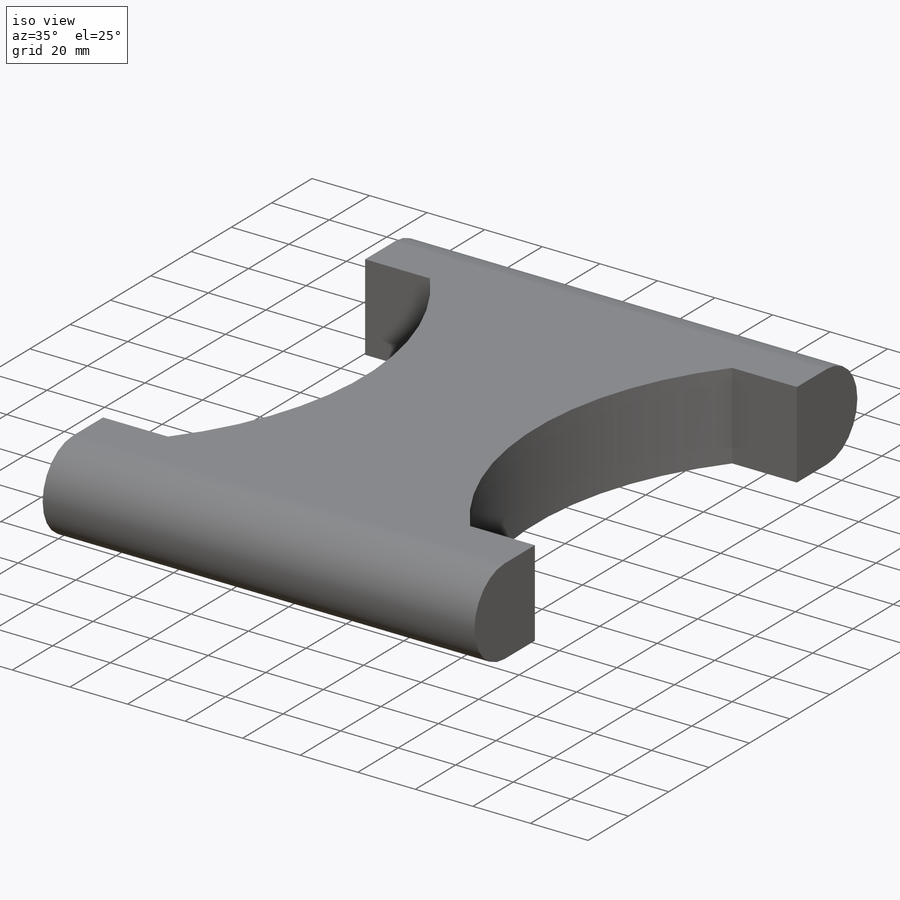
[diagram: iso view]
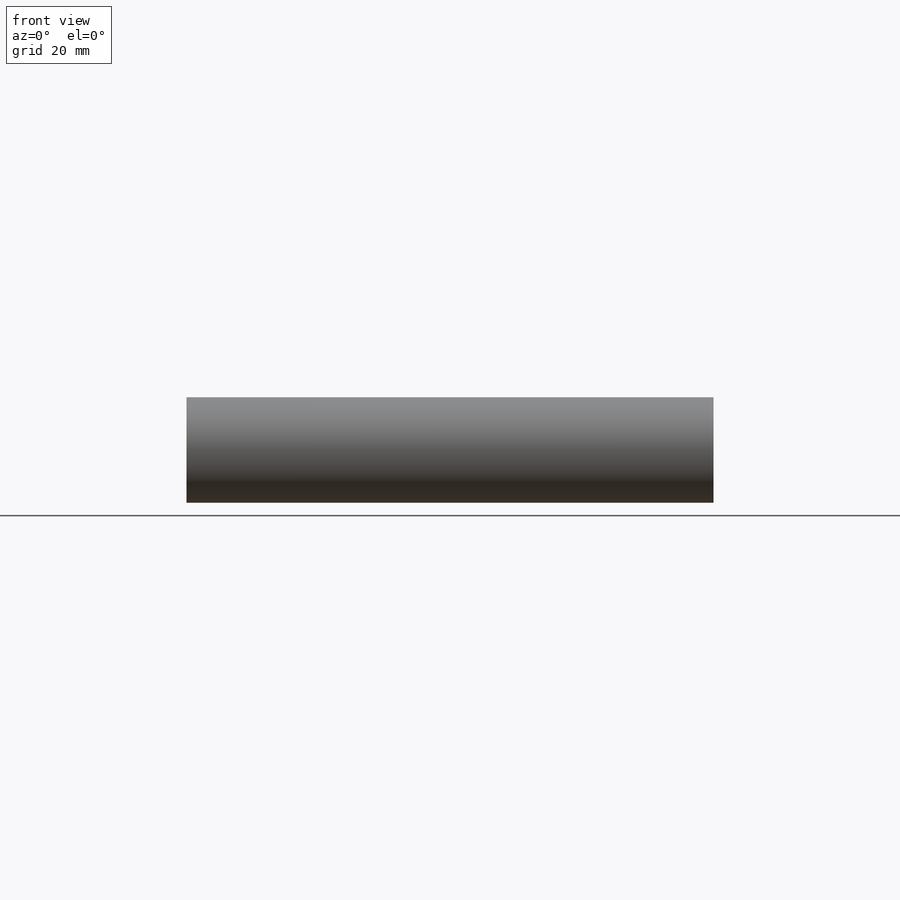
[diagram: front view]
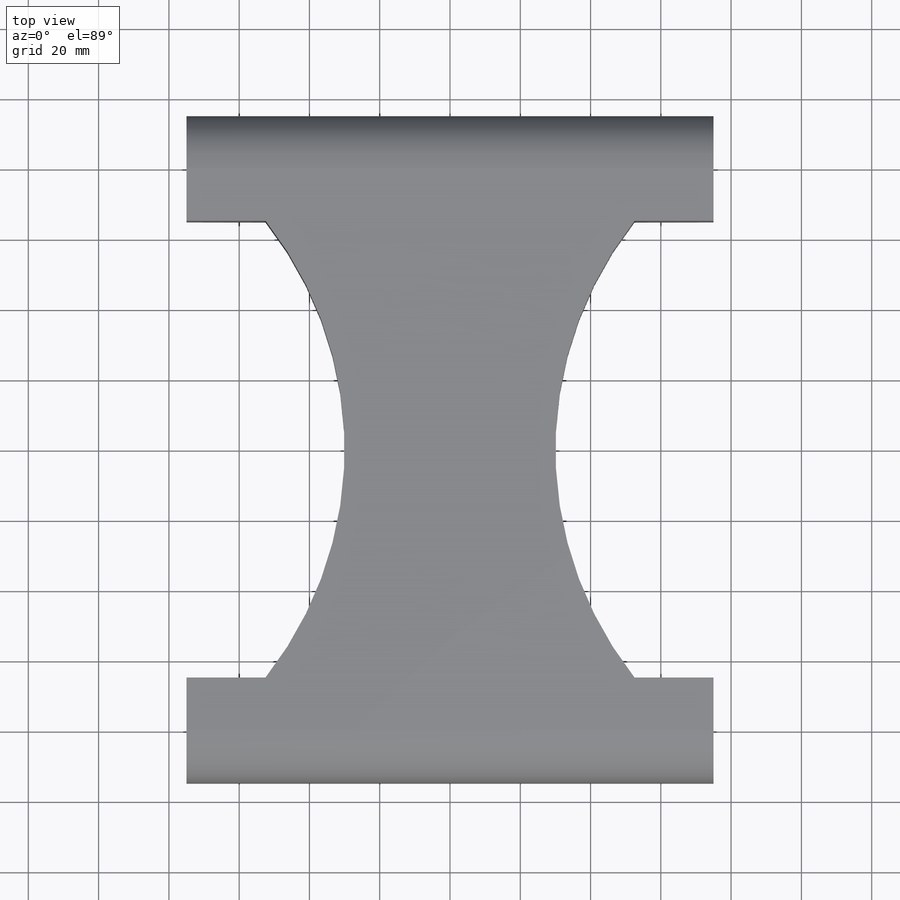
[diagram: top view]
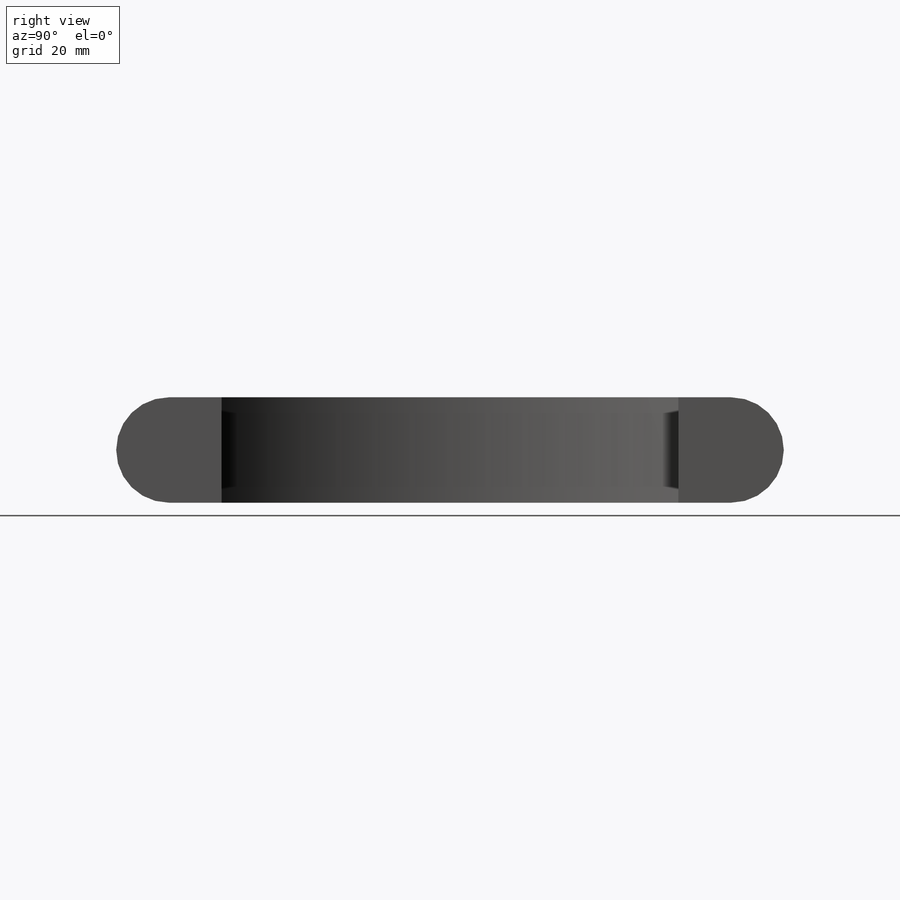
[diagram: right view]
SOLIDWORKS PART (.sldprt)
format: sldprt  version: not decoded by parser v0  size: 1,445,888 bytes
history: native  units: mm
features: sketch x7, cut_extrude x6, plane x3, extrude x2, material x1 (+9 scaffold rows collapsed)
feature tree (28):
  scaffold x9  (default folders/planes/origin — collapsed)
  material  "Material <nicht festgelegt>"
  plane  "Ebene vorne"
  plane  "Ebene oben"
  plane  "Ebene rechts"
  sketch  "Skizze1"  dims[D1=160.0mm D2=30.0mm]
  extrude  "Aufsatz-Linear austragen1"  Depth=150mm
  extrude  "Achse2"  [1 undecoded]
  sketch  "Skizze3"  dims[c1.D1=75.0mm c1.D2=75.0mm c1.D3=5.0mm c2.D1=~22.910001mm c2.D2=~73.461415mm c3.D1=75.0mm c3.D2=75.0mm c3.D3=~22.719975mm c4.D1=75.0mm c4.D3=5.0mm c4.D4=75.0mm c4.D5=105.0mm c4.D6=150.0mm c4.D7=~22.639938mm c5.D5=105.0mm]
  cut_extrude  "Schnitt-Linear austragen1"  [1 undecoded]
  cut_extrude  "Schnitt-Linear austragen2"  [1 undecoded]
  sketch  "Skizze3<3>"
  sketch  "Skizze4"  dims[c1.D1=~151.939776mm c1.D4=~43.428832mm c2.D1=75.0mm c2.D2=75.0mm c2.D3=15.0mm c2.D4=105.0mm c2.D5=~34.13636mm c3.D1=75.0mm]
  cut_extrude  "Schnitt-Linear austragen3"  [1 undecoded]
  cut_extrude  "Schnitt-Linear austragen4"  [1 undecoded]
  sketch  "Skizze4<4>"
  sketch  "Skizze5"  dims[c1.D2=~97.185814mm c1.D1=105.0mm c2.D2=60.0mm]
  cut_extrude  "Schnitt-Linear austragen5"  [1 undecoded]
  cut_extrude  "Schnitt-Linear austragen6"  [1 undecoded]
  sketch  "Skizze5<4>"
decode coverage: 5 of 15 modeling features carry decoded parameters
note: ~ marks probable driven/reference dimensions
note: 7 parameter values undecoded
summary: no parameter record found for 7 features
note: suppression state not decoded; provenance and decode notes live in map.json
